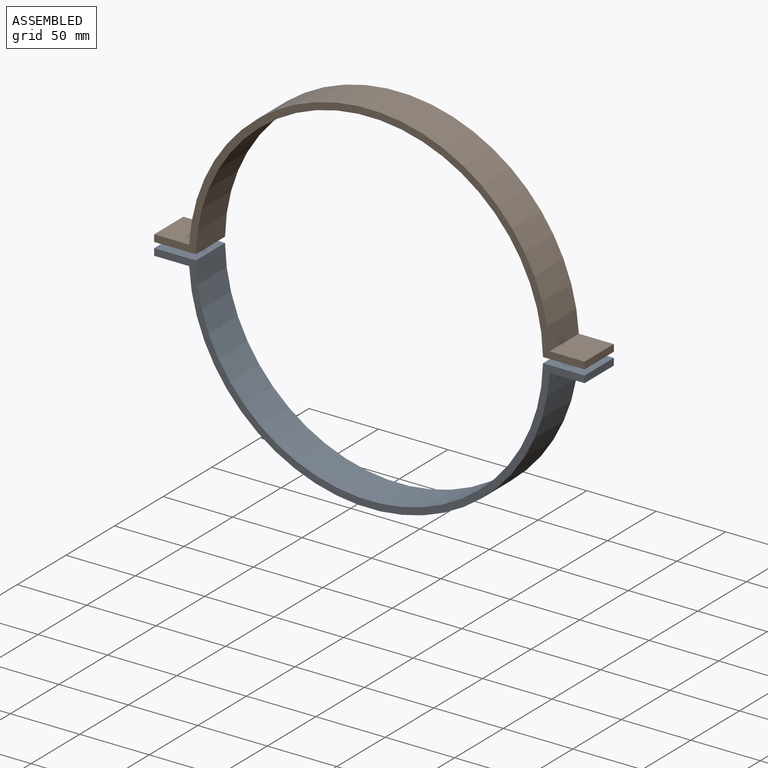
[diagram: assembled view]
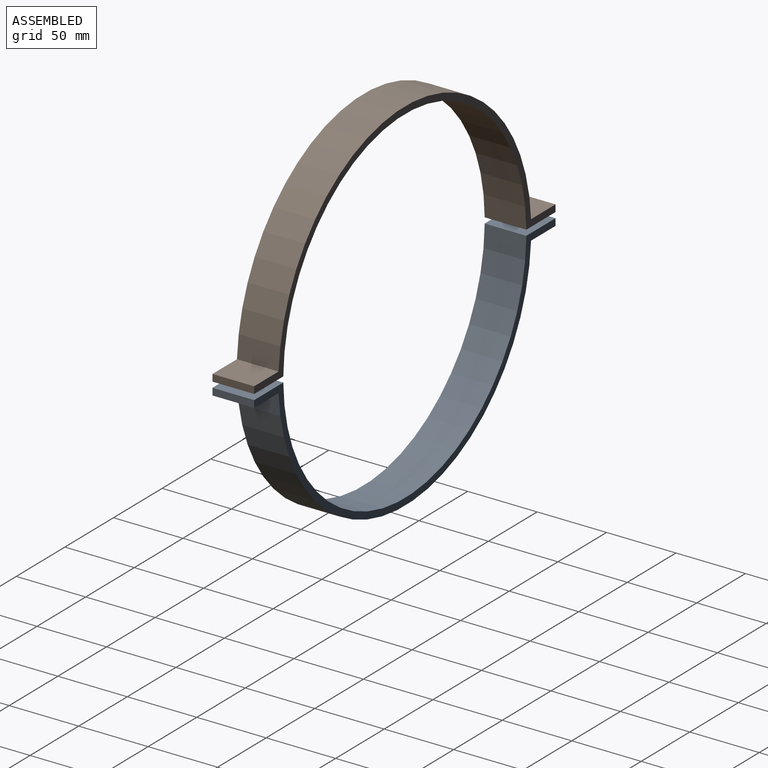
[diagram: assembled view, second angle]
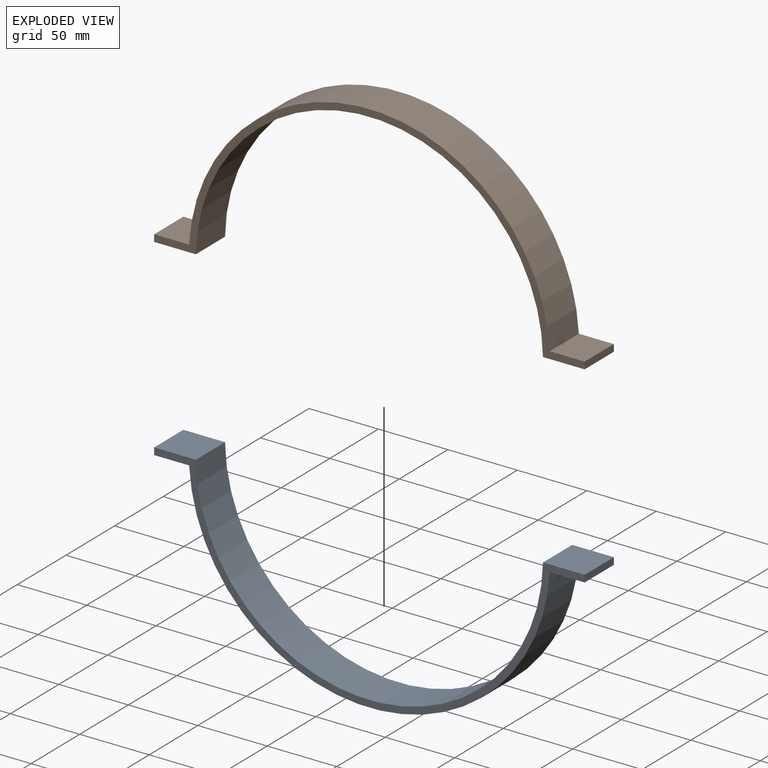
[diagram: exploded view]
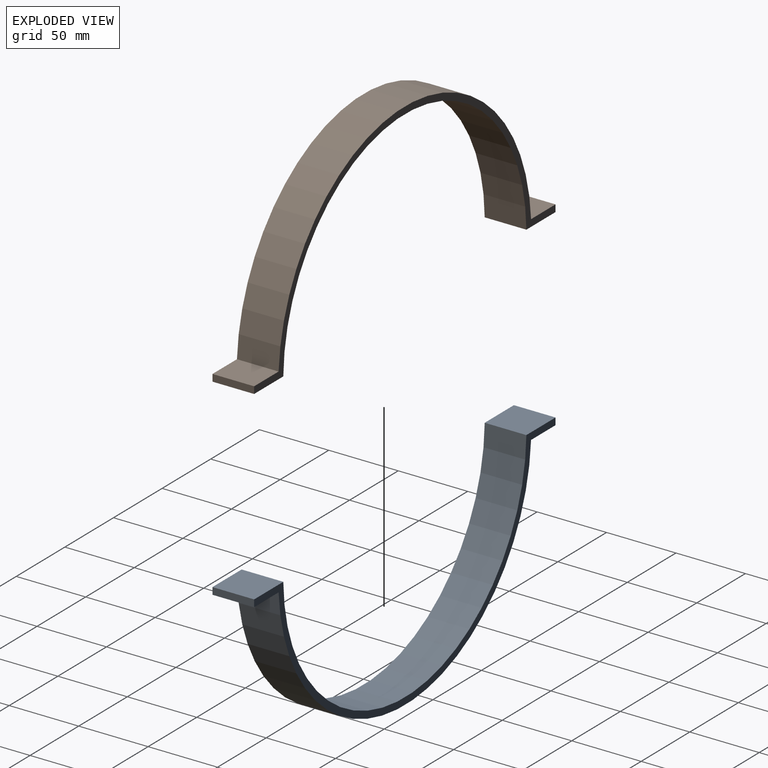
[diagram: exploded view, second angle]
ASSEMBLY  parts=2 mates=2
PART A: 10 faces, bbox 310x30x128 mm
  f0: plane 30x30mm, normal (0,0,-1), area 900mm2, adj f1,f7,f8,f9
  f1: cylinder r=125mm len=249.97mm, axis (0,1,0), area 11661mm2, adj f0,f2,f8,f9
  f2: plane 30x30mm, normal (0,0,-1), area 900mm2, adj f1,f3,f8,f9
  f3: plane 30x5mm, normal (1,0,0), area 150mm2, adj f2,f4,f8,f9
  f4: plane 30x25.17mm, normal (0,0,1), area 755.2mm2, adj f3,f5,f8,f9
  f5: cylinder r=130mm len=259.62mm, axis (0,1,0), area 11832mm2, adj f4,f6,f8,f9
  f6: plane 30x25.17mm, normal (0,0,1), area 755.2mm2, adj f5,f7,f8,f9
  f7: plane 30x5mm, normal (-1,0,0), area 150mm2, adj f0,f6,f8,f9
  f8: plane 309.97x128mm, normal (0,-1,0), area 2233.5mm2, adj f0,f1,f2,f3,f4,f5,f6,f7
  f9: plane 309.97x128mm, normal (0,1,0), area 2233.5mm2, adj f0,f1,f2,f3,f4,f5,f6,f7
PART B: same geometry as A
PLACE A rot(axis=(1,0,0),180deg) t=(-24.03,-31.96,78.52)mm
PLACE B t=(-24.03,-1.96,78.52)mm fixed
MATE parallel B.f2 <-> A.f2  axis (0,0,-1) through (115.95,-16.96,80.52)mm
MATE cylindrical A.f1 <-> B.f1  axis (0,-1,0) through (-24.03,-16.96,78.52)mm
